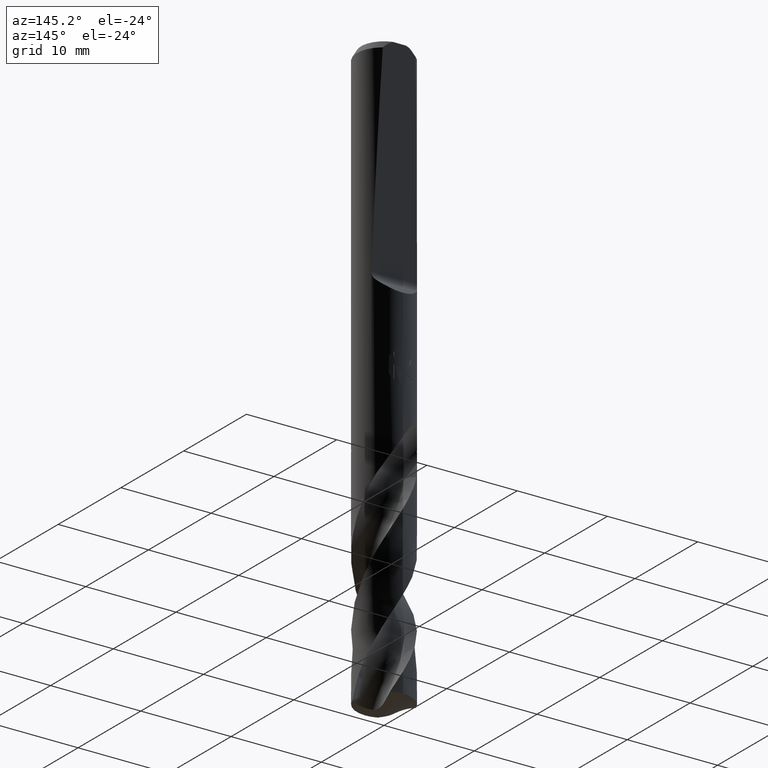
[diagram: clean part render]
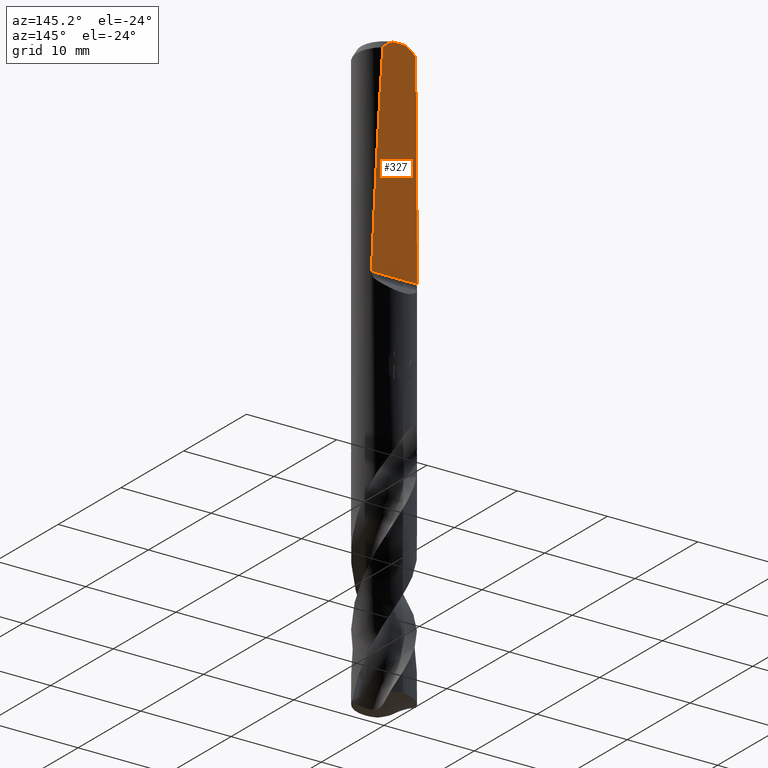
[diagram: same view with one face highlighted and labeled with its STEP entity id]
A machine part, auxiliary view. The second image highlights one B-rep face of the part: STEP entity #327.
In plain terms, the highlighted planar face has unit normal (0, -0.9994, 0.0349).
Its self-contained STEP definition (entity closure, byte-faithful):
#327=ADVANCED_FACE('',(#864),#865,.F.);
#341=EDGE_CURVE('',#387,#397,#881,.T.);
#387=VERTEX_POINT('',#937);
#397=VERTEX_POINT('',#947);
#459=EDGE_CURVE('',#495,#589,#1016,.T.);
#463=EDGE_CURVE('',#397,#643,#1020,.T.);
#493=EDGE_CURVE('',#643,#763,#1051,.T.);
#495=VERTEX_POINT('',#1053);
#589=VERTEX_POINT('',#1152);
#643=VERTEX_POINT('',#1210);
#663=EDGE_CURVE('',#763,#495,#1230,.T.);
#693=EDGE_CURVE('',#589,#387,#1261,.T.);
#763=VERTEX_POINT('',#1337);
#864=FACE_OUTER_BOUND('',#1700,.T.);
#865=PLANE('',#1701);
#881=LINE('',#1734,#1735);
#937=CARTESIAN_POINT('',(0.737618527549059,2.42857385085146,0.0));
#947=CARTESIAN_POINT('',(-0.737618527549059,2.42857385085146,0.0));
#1016=ELLIPSE('',#3306,85.9611250435315,3.0);
#1020=(B_SPLINE_CURVE(2,(#3313,#3314,#3315),.UNSPECIFIED.,.F.,.F.)B_SPLINE_CURVE_WITH_KNOTS((3,3),(0.0,1.33406345776389),.UNSPECIFIED.)RATIONAL_B_SPLINE_CURVE((1.0,1.01693558315787,1.0))BOUNDED_CURVE()REPRESENTATION_ITEM('')GEOMETRIC_REPRESENTATION_ITEM()CURVE());
#1051=ELLIPSE('',#3440,85.9611250435315,3.0);
#1053=CARTESIAN_POINT('',(2.52177371746177,1.62500994394466,-23.0110595671924));
#1152=CARTESIAN_POINT('',(1.79915003951659,2.40063723525806,-0.799999999999997));
#1210=CARTESIAN_POINT('',(-1.79915003951659,2.40063723525806,-0.799999999999997));
#1230=LINE('',#5205,#5206);
#1261=(B_SPLINE_CURVE(2,(#5611,#5612,#5613),.UNSPECIFIED.,.F.,.F.)B_SPLINE_CURVE_WITH_KNOTS((3,3),(0.0,1.33406345776389),.UNSPECIFIED.)RATIONAL_B_SPLINE_CURVE((1.0,1.01693558315787,1.0))BOUNDED_CURVE()REPRESENTATION_ITEM('')GEOMETRIC_REPRESENTATION_ITEM()CURVE());
#1337=CARTESIAN_POINT('',(-2.52177371746177,1.62500994394466,-23.0110595671924));
#1700=EDGE_LOOP('',(#7066,#7067,#7068,#7069,#7070,#7071));
#1701=AXIS2_PLACEMENT_3D('',#7072,#7073,#7074);
#1734=CARTESIAN_POINT('',(-1.5,2.42857385085146,0.0));
#1735=VECTOR('',#7104,1.0);
#3306=AXIS2_PLACEMENT_3D('',#7312,#7313,#7314);
#3313=CARTESIAN_POINT('',(-0.73761852754906,2.42857385085146,0.0));
#3314=CARTESIAN_POINT('',(-1.22648986683237,2.42045069546147,-0.23261673520412));
#3315=CARTESIAN_POINT('',(-1.79915003951659,2.40063723525806,-0.799999999999997));
#3440=AXIS2_PLACEMENT_3D('',#7332,#7333,#7334);
#5205=CARTESIAN_POINT('',(-3.0,1.62500994394466,-23.0110595671924));
#5206=VECTOR('',#7444,1.0);
#5611=CARTESIAN_POINT('',(1.79915003951659,2.40063723525806,-0.799999999999997));
#5612=CARTESIAN_POINT('',(1.22648986683237,2.42045069546147,-0.23261673520412));
#5613=CARTESIAN_POINT('',(0.73761852754906,2.42857385085146,0.0));
#7066=ORIENTED_EDGE('',*,*,#493,.F.);
#7067=ORIENTED_EDGE('',*,*,#463,.F.);
#7068=ORIENTED_EDGE('',*,*,#341,.F.);
#7069=ORIENTED_EDGE('',*,*,#693,.F.);
#7070=ORIENTED_EDGE('',*,*,#459,.F.);
#7071=ORIENTED_EDGE('',*,*,#663,.F.);
#7072=CARTESIAN_POINT('',(-3.0,1.62500994394466,-23.0110595671924));
#7073=DIRECTION('',(0.0,-0.999390827019096,0.0348994967025009));
#7074=DIRECTION('',(0.0,-0.0348994967025009,-0.999390827019096));
#7104=DIRECTION('',(-1.0,0.0,0.0));
#7312=CARTESIAN_POINT('',(0.0,0.0,-69.5452559092481));
#7313=DIRECTION('',(0.0,-0.999390827019096,0.0348994967025009));
#7314=DIRECTION('',(0.0,0.0348994967025009,0.999390827019096));
#7332=CARTESIAN_POINT('',(0.0,0.0,-69.5452559092481));
#7333=DIRECTION('',(0.0,-0.999390827019096,0.0348994967025009));
#7334=DIRECTION('',(0.0,0.0348994967025009,0.999390827019096));
#7444=DIRECTION('',(1.0,0.0,0.0));